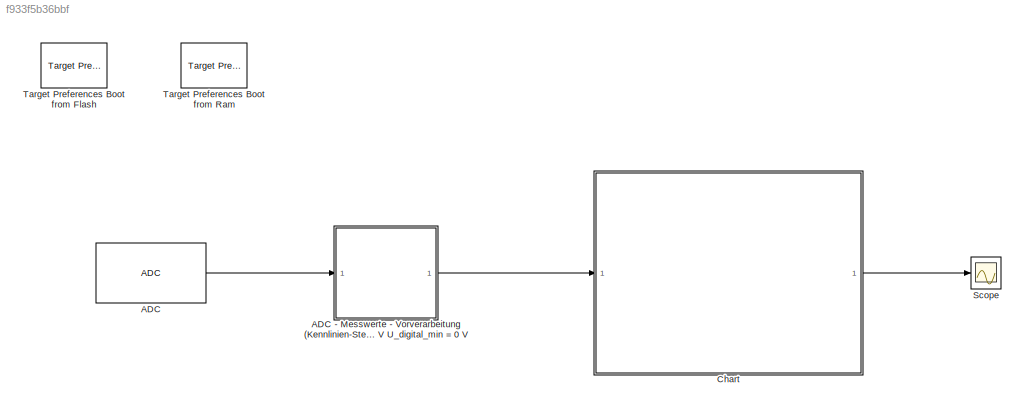
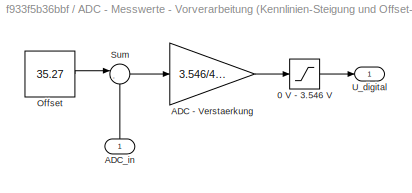
MODEL slx_f933f5b36bbf
KIND model
BLOCK [Reference] ADC  REF=c280xlib/ADC
  Ports = [0, 1]
  SourceBlock = c280xlib/ADC
  SourceType = C280x/C2833x ADC
  Ts = 0.001
  UserDataPersistent = on
  c28xmultiPort = off
  chdma = 1
  conv0 = ADCINA0
  conv1 = ADCINA1
  conv10 = ADCINB2
  conv11 = ADCINB3
  conv12 = ADCINB4
  conv13 = ADCINB5
  conv14 = ADCINB6
  conv15 = ADCINB7
  conv2 = ADCINA2
  conv3 = ADCINA3
  conv4 = ADCINA4
  conv5 = ADCINA5
  conv6 = ADCINA6
  conv7 = ADCINA7
  conv8 = ADCINB0
  conv9 = ADCINB1
  convA0 = ADCINA0
  convA1 = ADCINA1
  convA2 = ADCINA2
  convA3 = ADCINA3
  convA4 = ADCINA4
  convA5 = ADCINA5
  convA6 = ADCINA6
  convA7 = ADCINA7
  convAB0 = ADCINA0 and ADCINB0
  convAB1 = ADCINA1 and ADCINB1
  convAB2 = ADCINA2 and ADCINB2
  convAB3 = ADCINA3 and ADCINB3
  convAB4 = ADCINA4 and ADCINB4
  convAB5 = ADCINA5 and ADCINB5
  convAB6 = ADCINA6 and ADCINB6
  convAB7 = ADCINA7 and ADCINB7
  convB0 = ADCINB0
  convB1 = ADCINB1
  convB2 = ADCINB2
  convB3 = ADCINB3
  convB4 = ADCINB4
  convB5 = ADCINB5
  convB6 = ADCINB6
  convB7 = ADCINB7
  dType = uint16
  endma = off
  numConversionsDouble = 1
  numConversionsSingle = 1
  postInterrupt = off
  sourceSOC = Software
  sourceSOC1 = Software
  sourceSOC2 = ePWMxB
  useMode = Sequential
  useModule = A
  xint2_ADCSOC = 31
BLOCK [SubSystem] ADC - Messwerte - Vorverarbeitung (Kennlinien-Steigung und Offset-Kompensation) U_digital = (ADC_in - Offset) * 3.546 V // 4096 mit U_digital_max = 3.546 V U_digital_min = 0 V
  FunctionWithSeparateData = off
  MaskHideContents = off
  MinAlgLoopOccurrences = off
  Opaque = off
  Ports = [1, 1]
  PropExecContextOutsideSubsystem = off
  RTWSystemCode = Auto
  RequestExecContextInheritance = off
BLOCK [Saturate] ADC - Messwerte - Vorverarbeitung (Kennlinien-Steigung und Offset-Kompensation) U_digital = (ADC_in - Offset) * 3.546 V // 4096 mit U_digital_max = 3.546 V U_digital_min = 0 V/0 V - 3.546 V
  InputPortMap = u0
  LowerLimit = 0
  Ports = [1, 1]
  UpperLimit = 3.546
BLOCK [Gain] ADC - Messwerte - Vorverarbeitung (Kennlinien-Steigung und Offset-Kompensation) U_digital = (ADC_in - Offset) * 3.546 V // 4096 mit U_digital_max = 3.546 V U_digital_min = 0 V/ADC - Verstaerkung
  Gain = 3.546/4096
  OutDataTypeStr = Inherit: Inherit via internal rule
  ParamDataTypeStr = Inherit: Inherit via internal rule
  SaturateOnIntegerOverflow = off
BLOCK [Inport] ADC - Messwerte - Vorverarbeitung (Kennlinien-Steigung und Offset-Kompensation) U_digital = (ADC_in - Offset) * 3.546 V // 4096 mit U_digital_max = 3.546 V U_digital_min = 0 V/ADC_in
  IconDisplay = Port number
BLOCK [Constant] ADC - Messwerte - Vorverarbeitung (Kennlinien-Steigung und Offset-Kompensation) U_digital = (ADC_in - Offset) * 3.546 V // 4096 mit U_digital_max = 3.546 V U_digital_min = 0 V/Offset
  Value = 35.27
BLOCK [Sum] ADC - Messwerte - Vorverarbeitung (Kennlinien-Steigung und Offset-Kompensation) U_digital = (ADC_in - Offset) * 3.546 V // 4096 mit U_digital_max = 3.546 V U_digital_min = 0 V/Sum
  IconShape = round
  InputSameDT = off
  Inputs = |-+
  OutDataTypeStr = Inherit: Inherit via internal rule
  Ports = [2, 1]
  SaturateOnIntegerOverflow = off
BLOCK [Outport] ADC - Messwerte - Vorverarbeitung (Kennlinien-Steigung und Offset-Kompensation) U_digital = (ADC_in - Offset) * 3.546 V // 4096 mit U_digital_max = 3.546 V U_digital_min = 0 V/U_digital
  IconDisplay = Port number
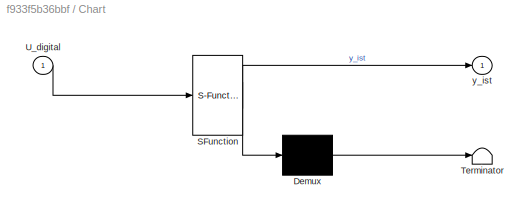
BLOCK [SubSystem] Chart
  ErrorFcn = Stateflow.Translate.translate
  FunctionWithSeparateData = off
  MaskHideContents = off
  MinAlgLoopOccurrences = off
  Opaque = off
  PermitHierarchicalResolution = ExplicitOnly
  Ports = [1, 1]
  PropExecContextOutsideSubsystem = off
  RTWSystemCode = Auto
  RequestExecContextInheritance = off
  SFBlockType = Chart
  TreatAsAtomicUnit = on
BLOCK [Demux] Chart/ Demux 
  Outputs = 1
  Ports = [1, 1]
BLOCK [S-Function] Chart/ SFunction 
  EnableBusSupport = on
  FunctionName = sf_sfun
  PortCounts = [1 2]
  Ports = [1, 2]
  Tag = Stateflow S-Function test_adc 1
BLOCK [Terminator] Chart/ Terminator 
BLOCK [Inport] Chart/U_digital
  IconDisplay = Port number
BLOCK [Outport] Chart/y_ist
  IconDisplay = Port number
BLOCK [Scope] Scope
  DataFormat = StructureWithTime
  Floating = off
  NumInputPorts = 1
  Ports = [1]
  SampleTime = 0
  ShowLegends = off
  YMax = 10
BLOCK [Reference] Target Preferences Boot from Flash  REF=idelinklib_tgtpref/Target Preferences
Template
  Commented = on
  Ports = []
  SourceBlock = idelinklib_tgtpref/Target Preferences\nTemplate
  SourceType = Target Preferences
  Tag = ccslinktgtpref_ccsv4
  UserDataPersistent = on
  library = off
BLOCK [Reference] Target Preferences Boot from Ram  REF=idelinklib_tgtpref/Target Preferences
Template
  Ports = []
  SourceBlock = idelinklib_tgtpref/Target Preferences\nTemplate
  SourceType = Target Preferences
  Tag = ccslinktgtpref_ccsv4
  UserDataPersistent = on
  library = off
LINE ADC - Messwerte - Vorverarbeitung (Kennlinien-Steigung und Offset-Kompensation) U_digital = (ADC_in - Offset) * 3.546 V // 4096 mit U_digital_max = 3.546 V U_digital_min = 0 V/0 V - 3.546 V:1 -> ADC - Messwerte - Vorverarbeitung (Kennlinien-Steigung und Offset-Kompensation) U_digital = (ADC_in - Offset) * 3.546 V // 4096 mit U_digital_max = 3.546 V U_digital_min = 0 V/U_digital:1
LINE ADC - Messwerte - Vorverarbeitung (Kennlinien-Steigung und Offset-Kompensation) U_digital = (ADC_in - Offset) * 3.546 V // 4096 mit U_digital_max = 3.546 V U_digital_min = 0 V/ADC - Verstaerkung:1 -> ADC - Messwerte - Vorverarbeitung (Kennlinien-Steigung und Offset-Kompensation) U_digital = (ADC_in - Offset) * 3.546 V // 4096 mit U_digital_max = 3.546 V U_digital_min = 0 V/0 V - 3.546 V:1
LINE ADC - Messwerte - Vorverarbeitung (Kennlinien-Steigung und Offset-Kompensation) U_digital = (ADC_in - Offset) * 3.546 V // 4096 mit U_digital_max = 3.546 V U_digital_min = 0 V/ADC_in:1 -> ADC - Messwerte - Vorverarbeitung (Kennlinien-Steigung und Offset-Kompensation) U_digital = (ADC_in - Offset) * 3.546 V // 4096 mit U_digital_max = 3.546 V U_digital_min = 0 V/Sum:2
LINE ADC - Messwerte - Vorverarbeitung (Kennlinien-Steigung und Offset-Kompensation) U_digital = (ADC_in - Offset) * 3.546 V // 4096 mit U_digital_max = 3.546 V U_digital_min = 0 V/Offset:1 -> ADC - Messwerte - Vorverarbeitung (Kennlinien-Steigung und Offset-Kompensation) U_digital = (ADC_in - Offset) * 3.546 V // 4096 mit U_digital_max = 3.546 V U_digital_min = 0 V/Sum:1
LINE ADC - Messwerte - Vorverarbeitung (Kennlinien-Steigung und Offset-Kompensation) U_digital = (ADC_in - Offset) * 3.546 V // 4096 mit U_digital_max = 3.546 V U_digital_min = 0 V/Sum:1 -> ADC - Messwerte - Vorverarbeitung (Kennlinien-Steigung und Offset-Kompensation) U_digital = (ADC_in - Offset) * 3.546 V // 4096 mit U_digital_max = 3.546 V U_digital_min = 0 V/ADC - Verstaerkung:1
LINE ADC - Messwerte - Vorverarbeitung (Kennlinien-Steigung und Offset-Kompensation) U_digital = (ADC_in - Offset) * 3.546 V // 4096 mit U_digital_max = 3.546 V U_digital_min = 0 V:1 -> Chart:1
LINE ADC:1 -> ADC - Messwerte - Vorverarbeitung (Kennlinien-Steigung und Offset-Kompensation) U_digital = (ADC_in - Offset) * 3.546 V // 4096 mit U_digital_max = 3.546 V U_digital_min = 0 V:1
LINE Chart:1 -> Scope:1
